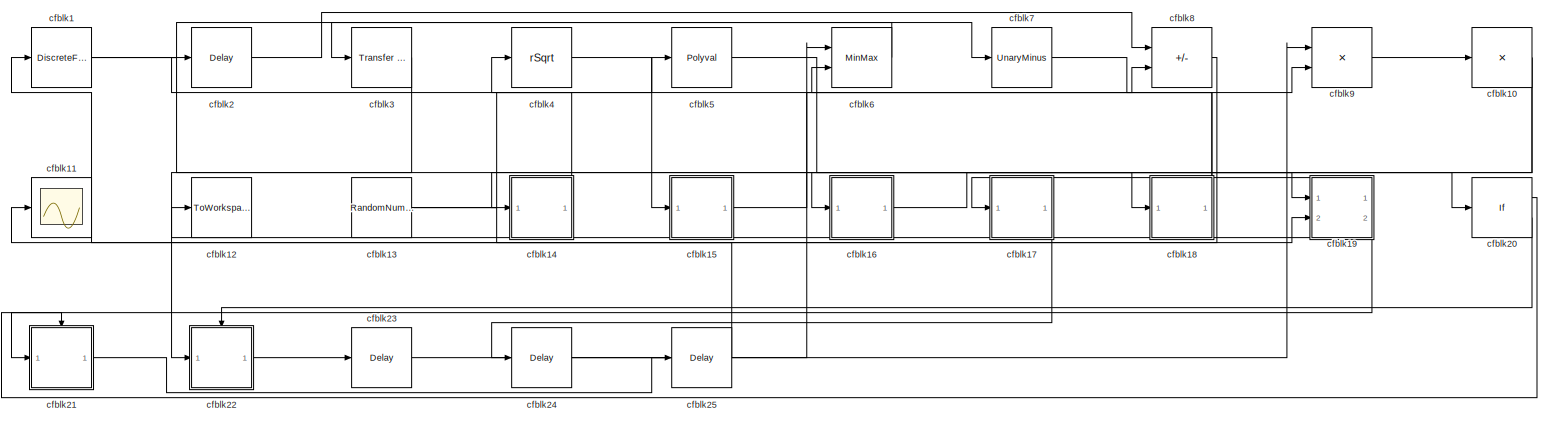
[diagram: root canvas - part 1/1, most of the canvas]
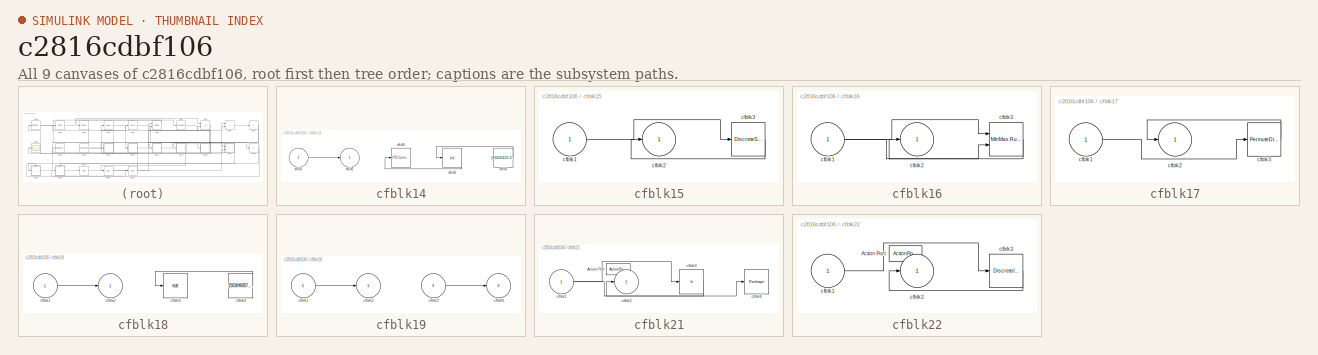
[diagram: thumbnail index - all 9 canvases of the model, root first then tree order]
MODEL slx_c2816cdbf106
KIND model
CONFIG AbsTol = auto
CONFIG EnableMultiTasking = off
CONFIG FixedStep = auto
CONFIG MaxStep = auto
CONFIG MinStep = auto
CONFIG RelTol = 1e-3
CONFIG SampleTimeConstraint = Unconstrained
CONFIG SolverName = VariableStepAuto
CONFIG StartTime = 0.0
CONFIG StopTime = 10.0
BLOCK [DiscreteFir] cfblk1
  InputPortMap = u0
  OutputPortMap = o0
  Ports = [1, 1]
  SampleTime = 1
BLOCK [Product] cfblk10
  Inputs = *
  Ports = [1, 1]
BLOCK [Scope] cfblk11
  Floating = off
  NumInputPorts = 1
  Ports = [1]
BLOCK [ToWorkspace] cfblk12
  FixptAsFi = on
  MaxDataPoints = inf
  Ports = [1]
  SampleTime = -1
  SaveFormat = Timeseries
  VariableName = jawxtud
BLOCK [RandomNumber] cfblk13
  Mean = [-45077.482242]
  SampleTime = 0.1
  Seed = [995581707.000000]
  Variance = [93699.322914]
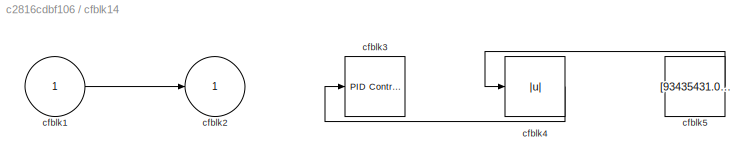
BLOCK [SubSystem] cfblk14
  Ports = [1, 1]
  RequestExecContextInheritance = off
BLOCK [Inport] cfblk14/cfblk1
BLOCK [Outport] cfblk14/cfblk2
BLOCK [Reference] cfblk14/cfblk3  REF=slpidlib/PID Controller
  Ports = [1, 1]
  SourceBlock = slpidlib/PID Controller
  SourceProductBaseCode = SL
  SourceType = PID 1dof
BLOCK [Abs] cfblk14/cfblk4
  SaturateOnIntegerOverflow = off
BLOCK [Constant] cfblk14/cfblk5
  SampleTime = 1
  Value = [93435431.088425]
BLOCK [SubSystem] cfblk15
  Ports = [1, 1]
  RequestExecContextInheritance = off
BLOCK [Inport] cfblk15/cfblk1
BLOCK [Outport] cfblk15/cfblk2
BLOCK [DiscreteStateSpace] cfblk15/cfblk3
BLOCK [SubSystem] cfblk16
  Ports = [1, 1]
  RequestExecContextInheritance = off
BLOCK [Inport] cfblk16/cfblk1
BLOCK [Outport] cfblk16/cfblk2
BLOCK [Reference] cfblk16/cfblk3  REF=simulink/Math
Operations/MinMax
Running
Resettable
  Ports = [2, 1]
  SourceBlock = simulink/Math\nOperations/MinMax\nRunning\nResettable
  SourceProductBaseCode = SL
  SourceType = MinMax Running Resettable
BLOCK [SubSystem] cfblk17
  Ports = [1, 1]
  RequestExecContextInheritance = off
BLOCK [Inport] cfblk17/cfblk1
BLOCK [Outport] cfblk17/cfblk2
BLOCK [PermuteDimensions] cfblk17/cfblk3
BLOCK [SubSystem] cfblk18
  Ports = [1, 1]
  RequestExecContextInheritance = off
BLOCK [Inport] cfblk18/cfblk1
BLOCK [Outport] cfblk18/cfblk2
BLOCK [Sqrt] cfblk18/cfblk3
BLOCK [Constant] cfblk18/cfblk4
  SampleTime = 1
  Value = [563846957.523481]
BLOCK [SubSystem] cfblk19
  Ports = [2, 2]
  RequestExecContextInheritance = off
BLOCK [Inport] cfblk19/cfblk1
BLOCK [Outport] cfblk19/cfblk2
BLOCK [Inport] cfblk19/cfblk3
  Port = 2
BLOCK [Outport] cfblk19/cfblk4
  Port = 2
BLOCK [Delay] cfblk2
  InputPortMap = u0
  Ports = [1, 1]
  SampleTime = 1
BLOCK [If] cfblk20
  IfExpression = u1 >= 0
  Ports = [1, 2]
  SampleTime = 1
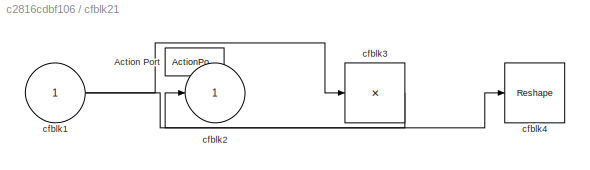
BLOCK [SubSystem] cfblk21
  Ports = [1, 1, 0, 0, 0, 0, 0, 1]
  RequestExecContextInheritance = off
  TreatAsAtomicUnit = on
BLOCK [ActionPort] cfblk21/Action Port
  ActionPortLabel = if(u1 >= 0)
BLOCK [Inport] cfblk21/cfblk1
BLOCK [Outport] cfblk21/cfblk2
BLOCK [Product] cfblk21/cfblk3
  Inputs = *
  Ports = [1, 1]
BLOCK [Reshape] cfblk21/cfblk4
  Ports = [1, 1]
BLOCK [SubSystem] cfblk22
  Ports = [1, 1, 0, 0, 0, 0, 0, 1]
  RequestExecContextInheritance = off
  TreatAsAtomicUnit = on
BLOCK [ActionPort] cfblk22/Action Port
  ActionPortLabel = else
BLOCK [Inport] cfblk22/cfblk1
BLOCK [Outport] cfblk22/cfblk2
BLOCK [DiscreteIntegrator] cfblk22/cfblk3
  ICPrevOutput = DiscIntNeverNeededParam
  ICPrevScaledInput = DiscIntNeverNeededParam
  InitialConditionSetting = Auto
  Ports = [1, 1]
  SampleTime = -1
BLOCK [Delay] cfblk23
  InputPortMap = u0
  Ports = [1, 1]
  SampleTime = 1
BLOCK [Delay] cfblk24
  InputPortMap = u0
  Ports = [1, 1]
  SampleTime = 1
BLOCK [Delay] cfblk25
  InputPortMap = u0
  Ports = [1, 1]
  SampleTime = 1
BLOCK [Reference] cfblk3  REF=simulink/Discrete/Transfer Fcn
Real Zero
  Ports = [1, 1]
  SourceBlock = simulink/Discrete/Transfer Fcn\nReal Zero
  SourceProductBaseCode = SL
  SourceType = Transfer Fcn Real Zero
BLOCK [Sqrt] cfblk4
  AlgorithmType = Newton-Raphson
  Operator = rSqrt
BLOCK [Polyval] cfblk5
  Coefs = [ +2.081618890e-019, -1.441693666e-014, +4.719686976e-010, -8.536869453e-006, +1.621573104e-001, -8.087801117e+001 ]
BLOCK [MinMax] cfblk6
  Function = max
  Inputs = 2
  Ports = [2, 1]
BLOCK [UnaryMinus] cfblk7
BLOCK [Sum] cfblk8
  IconShape = rectangular
  Inputs = -+
  Ports = [2, 1]
BLOCK [Product] cfblk9
  Inputs = **
  Ports = [2, 1]
NET cfblk10:1 -> cfblk14:1, cfblk16:1
NET cfblk13:1 -> cfblk19:2, cfblk5:1
LINE cfblk14/cfblk1:1 -> cfblk14/cfblk2:1
LINE cfblk14/cfblk4:1 -> cfblk14/cfblk3:1
LINE cfblk14/cfblk5:1 -> cfblk14/cfblk4:1
LINE cfblk14:1 -> cfblk4:1
LINE cfblk15/cfblk1:1 -> cfblk15/cfblk3:1
LINE cfblk15/cfblk3:1 -> cfblk15/cfblk2:1
LINE cfblk15:1 -> cfblk8:2
NET cfblk16/cfblk1:1 -> cfblk16/cfblk3:1, cfblk16/cfblk3:2
LINE cfblk16/cfblk3:1 -> cfblk16/cfblk2:1
LINE cfblk16:1 -> cfblk19:1
LINE cfblk17/cfblk1:1 -> cfblk17/cfblk3:1
LINE cfblk17/cfblk3:1 -> cfblk17/cfblk2:1
LINE cfblk17:1 -> cfblk24:1
LINE cfblk18/cfblk1:1 -> cfblk18/cfblk2:1
LINE cfblk18/cfblk4:1 -> cfblk18/cfblk3:1
NET cfblk18:1 -> cfblk2:1, cfblk6:2
LINE cfblk19/cfblk1:1 -> cfblk19/cfblk2:1
LINE cfblk19/cfblk3:1 -> cfblk19/cfblk4:1
LINE cfblk19:1 -> cfblk17:1
NET cfblk19:2 -> cfblk12:1, cfblk21:1
NET cfblk1:1 -> cfblk18:1, cfblk7:1
LINE cfblk20:1 -> cfblk21:ifaction
LINE cfblk20:2 -> cfblk22:ifaction
NET cfblk21/cfblk1:1 -> cfblk21/cfblk3:1, cfblk21/cfblk4:1
LINE cfblk21/cfblk3:1 -> cfblk21/cfblk2:1
LINE cfblk21:1 -> cfblk25:1
LINE cfblk22/cfblk1:1 -> cfblk22/cfblk3:1
LINE cfblk22/cfblk3:1 -> cfblk22/cfblk2:1
LINE cfblk22:1 -> cfblk23:1
LINE cfblk23:1 -> cfblk6:1
LINE cfblk24:1 -> cfblk9:1
LINE cfblk25:1 -> cfblk1:1
LINE cfblk2:1 -> cfblk8:1
LINE cfblk3:1 -> cfblk22:1
LINE cfblk4:1 -> cfblk15:1
LINE cfblk5:1 -> cfblk20:1
LINE cfblk6:1 -> cfblk3:1
LINE cfblk7:1 -> cfblk9:2
LINE cfblk8:1 -> cfblk11:1
LINE cfblk9:1 -> cfblk10:1
note: NET lines group one-source signal fan-out (src -> all destinations, sorted); 1:1 wires keep LINE
